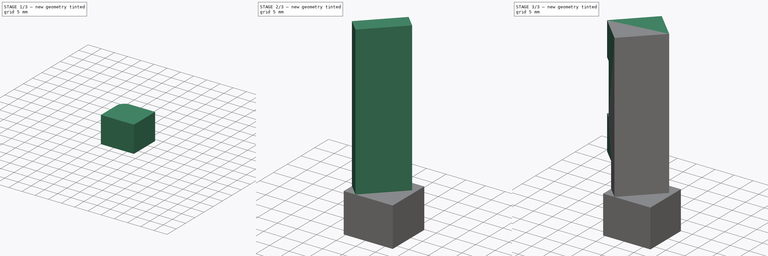
[diagram: build sequence overview — one tinted view per stage of 3, left to right]
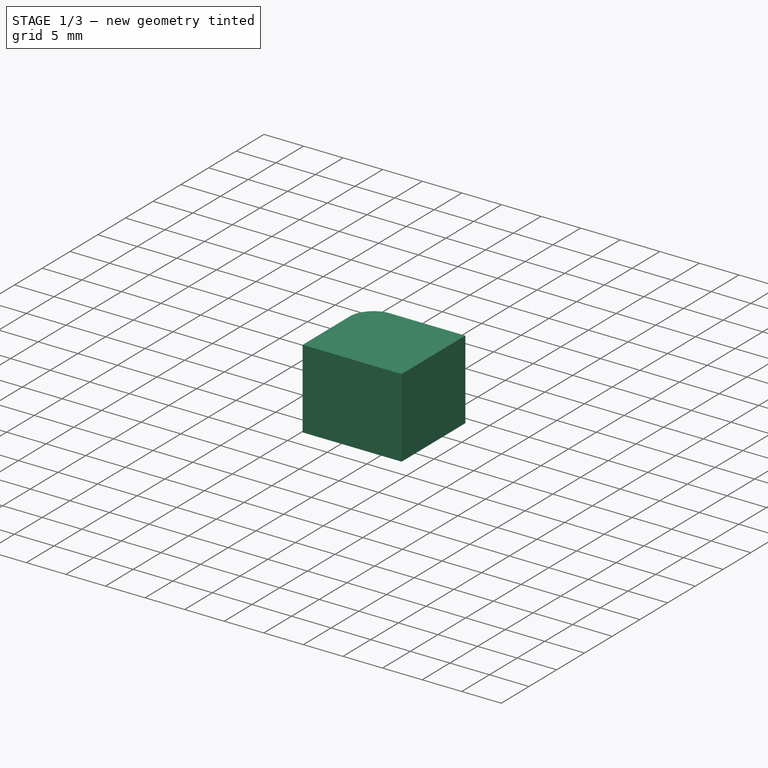
[diagram: stage 1 of 3 — iso view after this stage's code; geometry added in this stage tinted green]
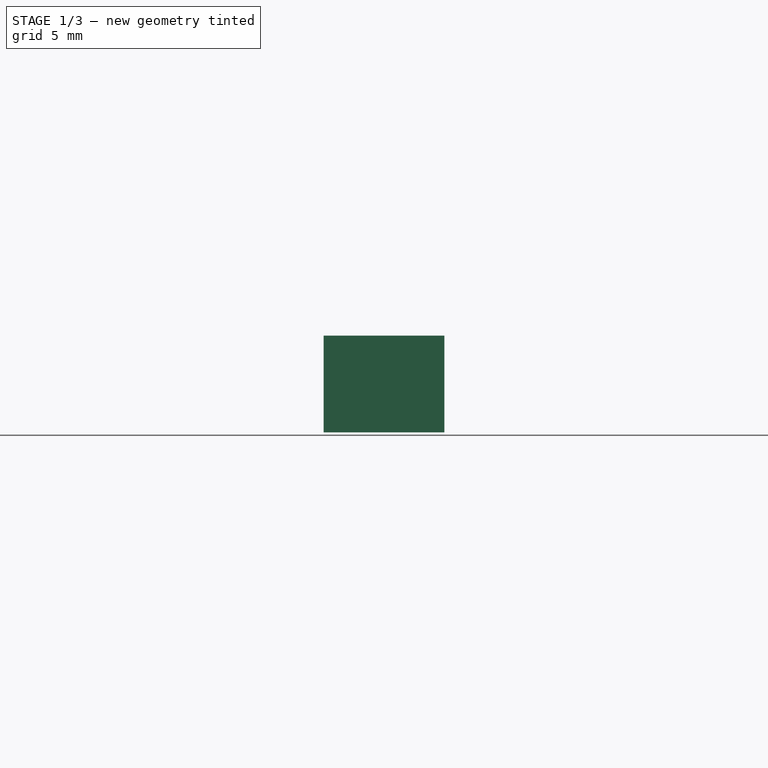
[diagram: stage 1 of 3 — front view after this stage's code; geometry added in this stage tinted green]
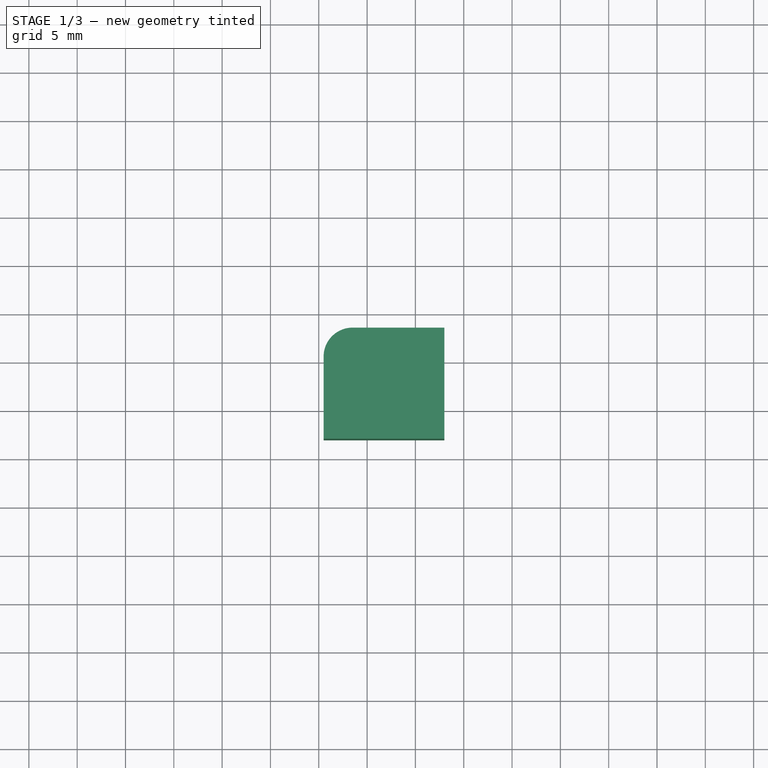
[diagram: stage 1 of 3 — top view after this stage's code; geometry added in this stage tinted green]
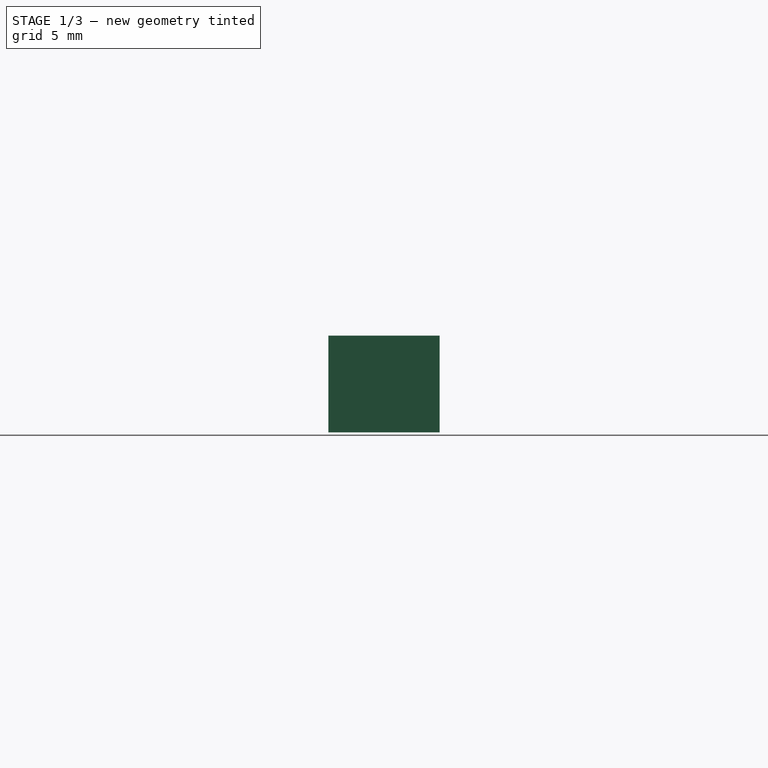
[diagram: stage 1 of 3 — right view after this stage's code; geometry added in this stage tinted green]
FCSTD DOCUMENT  (FreeCAD 0.20RUnknown)
Label: EngineMainBody
License: All rights reserved
LicenseURL: http://en.wikipedia.org/wiki/All_rights_reserved
objects: Sketcher::SketchObject×6, PartDesign::Pad×5, PartDesign::Body×1, PartDesign::Pocket×1
note: 19 computed .brp shape members not serialized (recipe doc carries the construction recipe); baked Part::Feature solids carry a one-line shape summary decoded from their .brp

FEATURE [PartDesign::Body] Body  label="EngineMainBody"
  Origin = -> Origin
FEATURE [Sketcher::SketchObject] Sketch013
  FullyConstrained = true
  MapMode = 5
  Support = -> [XY_Plane008]
  sketch-geometry (6):
    g0: LineSegment StartX=5.5 StartY=-5.5 StartZ=0 EndX=5.5 EndY=3.5 EndZ=0
    g1: LineSegment StartX=5.5 StartY=3.5 StartZ=0 EndX=-1.5 EndY=3.5 EndZ=0
    g2: LineSegment StartX=-4.5 StartY=0.5 StartZ=0 EndX=-4.5 EndY=-5.5 EndZ=0
    g3: LineSegment StartX=-4.5 StartY=-5.5 StartZ=0 EndX=5.5 EndY=-5.5 EndZ=0
    g4: GeomPoint X=0 Y=0 Z=0
    g5: ArcOfCircle CenterX=-1.5 CenterY=0.5 CenterZ=0 NormalX=0 NormalY=0 NormalZ=1 AngleXU=0 Radius=3 StartAngle=1.5708 EndAngle=3.14159
  constraints (15):
    c: Coincident(g0,g1)
    c: Coincident(g2,g3)
    c: Coincident(g3,g0)
    c: Horizontal(g1)
    c: Horizontal(g3)
    c: Vertical(g0)
    c: Vertical(g2)
    c: Coincident(g4,g-1)
    c: Tangent(g5,g2) = -1.5708
    c: Tangent(g5,g1) = -1.5708
    c: Radius(g5) = 3
    c: DistanceX(g3,g3) = 10
    c: DistanceY(g0,g0) = 9
    c: DistanceX(g0) = 5.5
    c: DistanceY(g0) = 3.5
FEATURE [PartDesign::Pad] Pad003
  Direction = (0,0,1)
  Length = 6
  Length2 = 10
  Profile = -> Sketch013
  ReferenceAxis = -> Sketch013 [N_Axis]
  Refine = true
  Type = 0
FEATURE [Sketcher::SketchObject] Sketch040
  ExternalGeometry = -> [Pad003]
  FullyConstrained = true
  MapMode = 5
  Placement = pos=(0,0,6) rot=(0,0,1;0rad)
  Support = -> [Pad003]
  sketch-geometry (6):
    g0: LineSegment StartX=5.5 StartY=3.5 StartZ=0 EndX=8 EndY=3.5 EndZ=0
    g1: LineSegment StartX=8 StartY=3.5 StartZ=0 EndX=8 EndY=-8 EndZ=0
    g2: LineSegment StartX=8 StartY=-8 StartZ=0 EndX=-4.5 EndY=-8 EndZ=0
    g3: LineSegment StartX=-4.5 StartY=-8 StartZ=0 EndX=-4.5 EndY=-5.5 EndZ=0
    g4: LineSegment StartX=-4.5 StartY=-5.5 StartZ=0 EndX=5.5 EndY=-5.5 EndZ=0
    g5: LineSegment StartX=5.5 StartY=-5.5 StartZ=0 EndX=5.5 EndY=3.5 EndZ=0
  constraints (15):
    c: Horizontal(g0)
    c: Coincident(g0,g1)
    c: Vertical(g1)
    c: Coincident(g1,g2)
    c: Horizontal(g2)
    c: Coincident(g2,g3)
    c: Vertical(g3)
    c: Coincident(g3,g4)
    c: Coincident(g4,g5)
    c: Coincident(g5,g0)
    c: Equal(g3,g0)
    c: DistanceX(g0,g0) = 2.5
    c: Coincident(g3,g-3)
    c: Coincident(g0,g-4)
    c: Coincident(g4,g-4)
FEATURE [PartDesign::Pad] Pad022
  BaseFeature = -> Pad003
  Direction = (0,0,1)
  Length = 10
  Length2 = 10
  Profile = -> Sketch040
  ReferenceAxis = -> Sketch040 [N_Axis]
  Refine = true
  Reversed = true
  Type = 0
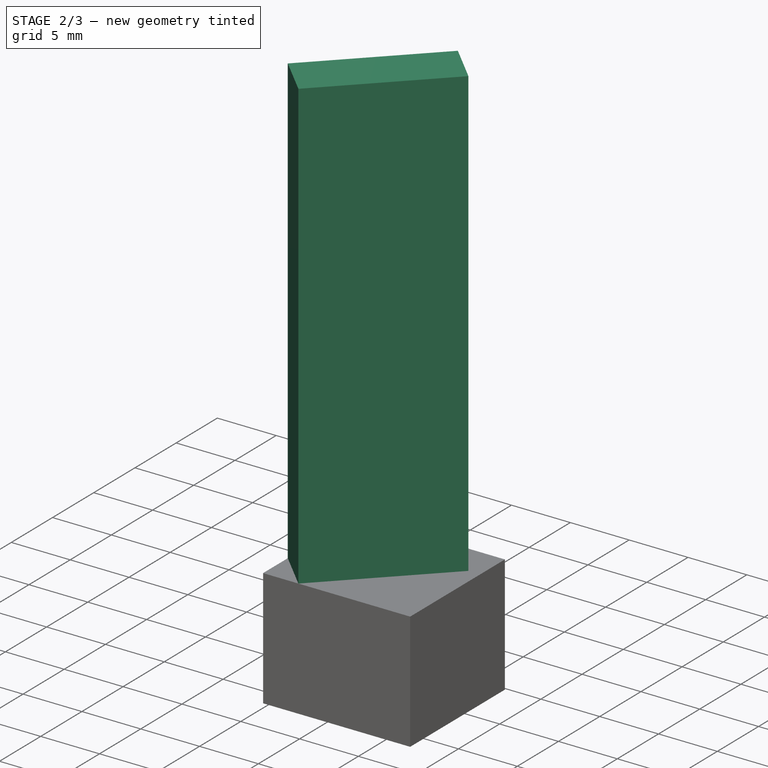
[diagram: stage 2 of 3 — iso view after this stage's code; geometry added in this stage tinted green]
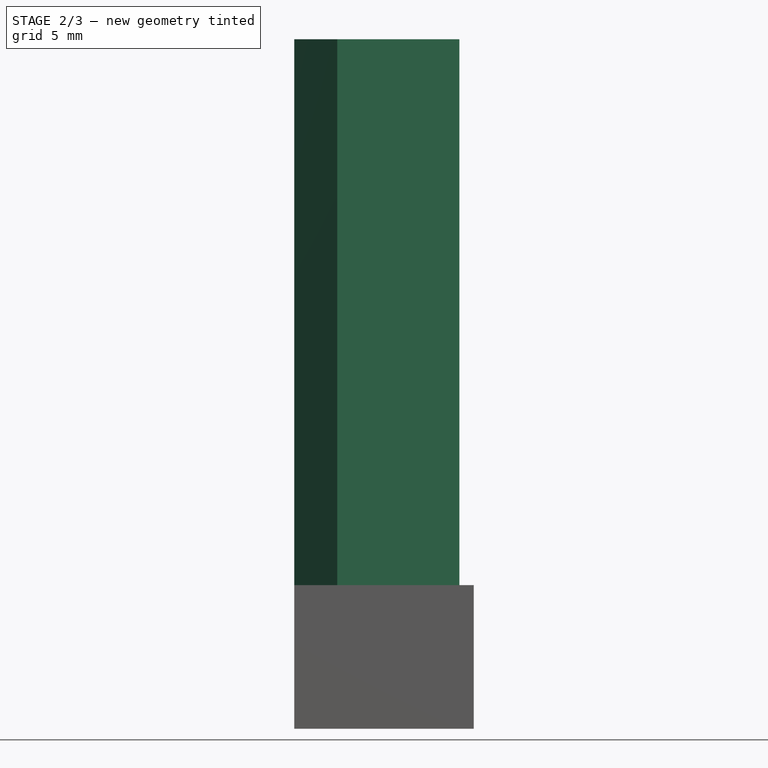
[diagram: stage 2 of 3 — front view after this stage's code; geometry added in this stage tinted green]
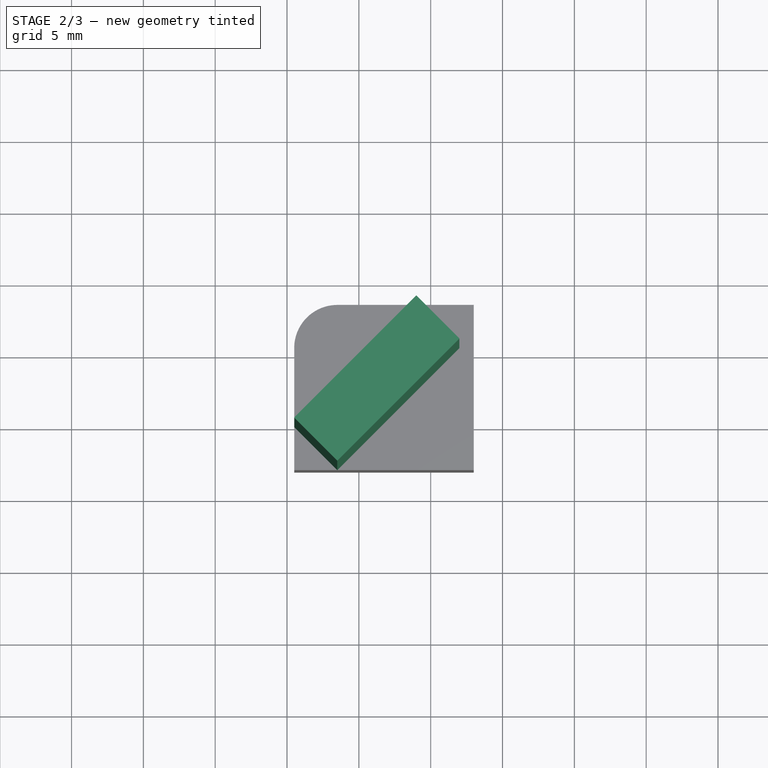
[diagram: stage 2 of 3 — top view after this stage's code; geometry added in this stage tinted green]
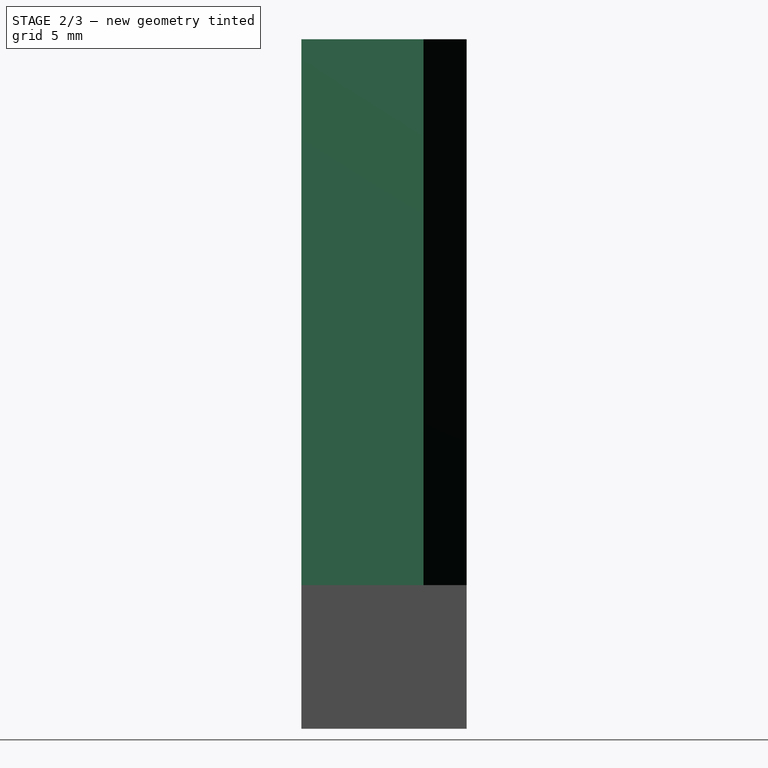
[diagram: stage 2 of 3 — right view after this stage's code; geometry added in this stage tinted green]
FEATURE [Sketcher::SketchObject] Sketch041
  FullyConstrained = true
  MapMode = 5
  Placement = pos=(0,0,0) rot=(1,0,0;3.14159rad)
  Support = -> [Pad022]
  sketch-geometry (1):
    g0: Circle CenterX=0 CenterY=0 CenterZ=0 NormalX=0 NormalY=0 NormalZ=1 AngleXU=0 Radius=2.75
  constraints (2):
    c: Coincident(g0,g-1)
    c: Diameter(g0) = 5.5
FEATURE [PartDesign::Pocket] Pocket007
  BaseFeature = -> Pad022
  Direction = (0,0,1)
  Length = 3
  Length2 = 5
  Profile = -> Sketch041
  ReferenceAxis = -> Sketch041 [N_Axis]
  Refine = true
  Type = 0
FEATURE [Sketcher::SketchObject] Sketch042
  ExternalGeometry = -> [Pocket007]
  FullyConstrained = true
  MapMode = 5
  Placement = pos=(0,0,6) rot=(0,0,1;0rad)
  Support = -> [Pocket007]
  sketch-geometry (4):
    g0: LineSegment StartX=-4.5 StartY=-5 StartZ=0 EndX=4 EndY=3.5 EndZ=0
    g1: LineSegment StartX=4 StartY=3.5 StartZ=0 EndX=7 EndY=0.5 EndZ=0
    g2: LineSegment StartX=7 StartY=0.5 StartZ=0 EndX=-1.5 EndY=-8 EndZ=0
    g3: LineSegment StartX=-1.5 StartY=-8 StartZ=0 EndX=-4.5 EndY=-5 EndZ=0
  constraints (12):
    c: Coincident(g0,g1)
    c: Coincident(g1,g2)
    c: Coincident(g2,g3)
    c: Coincident(g3,g0)
    c: Parallel(g2,g0)
    c: Parallel(g3,g1)
    c: Perpendicular(g3,g0)
    c: PointOnObject(g0,g-4)
    c: PointOnObject(g0,g-3)
    c: Angle(g-1,g2) = 0.785398
    c: DistanceY(g0,g-3) = 8.5
    c: PointOnObject(g2,g-5)
FEATURE [PartDesign::Pad] Pad023
  BaseFeature = -> Pocket007
  Direction = (0,0,1)
  Length = 38
  Length2 = 10
  Profile = -> Sketch042
  ReferenceAxis = -> Sketch042 [N_Axis]
  Refine = true
  Type = 0
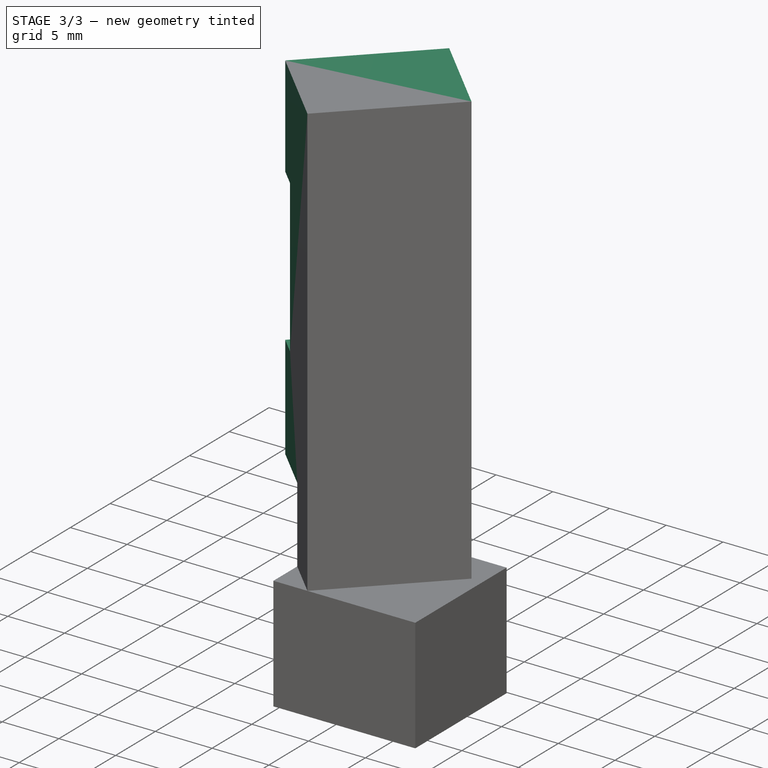
[diagram: stage 3 of 3 — iso view after this stage's code; geometry added in this stage tinted green]
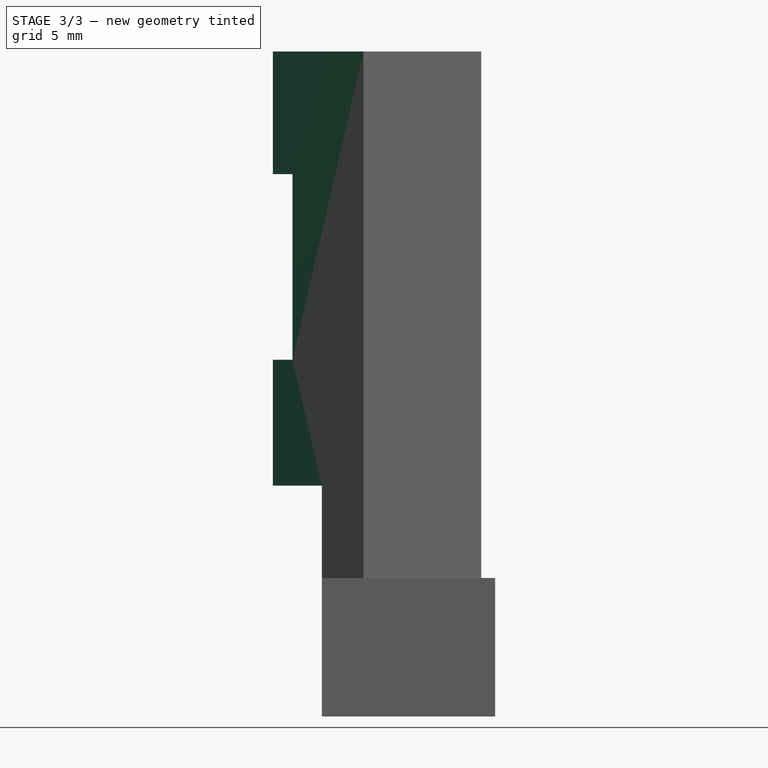
[diagram: stage 3 of 3 — front view after this stage's code; geometry added in this stage tinted green]
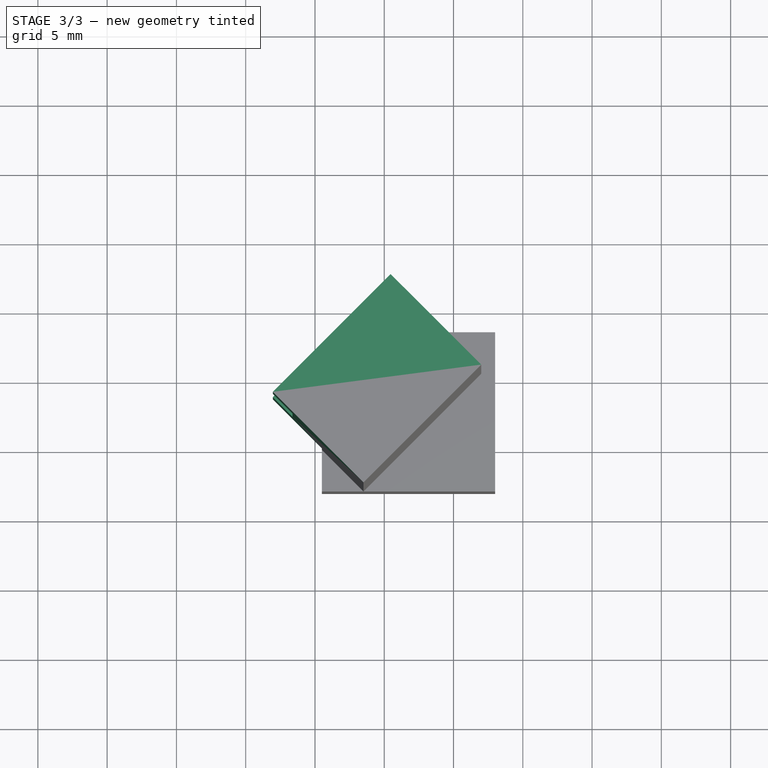
[diagram: stage 3 of 3 — top view after this stage's code; geometry added in this stage tinted green]
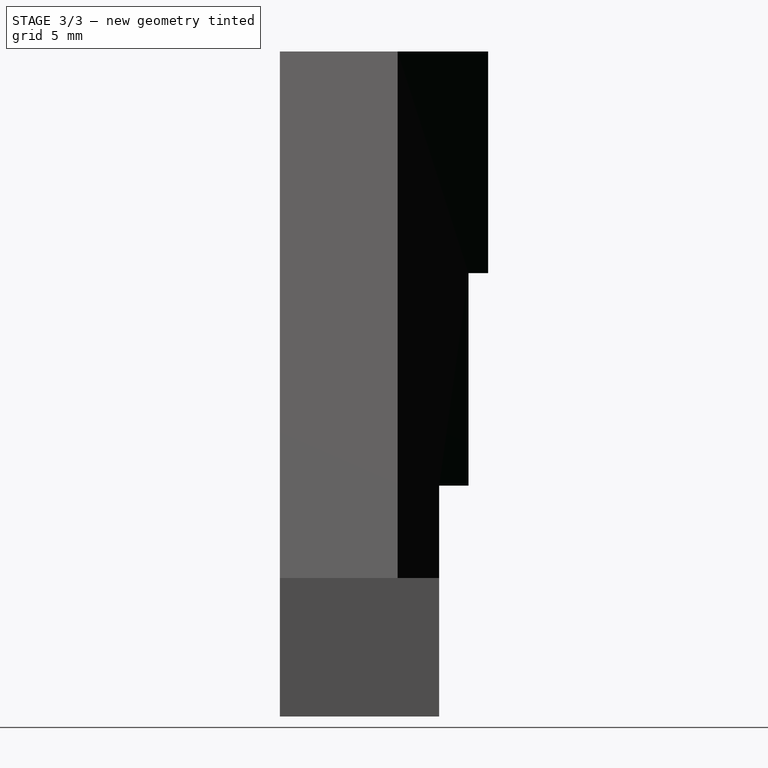
[diagram: stage 3 of 3 — right view after this stage's code; geometry added in this stage tinted green]
FEATURE [Sketcher::SketchObject] Sketch043
  ExternalGeometry = -> [Pad023]
  FullyConstrained = true
  MapMode = 5
  Placement = pos=(0.25,-0.25,0) rot=(-0.281085,0.678598,0.678598;3.68962rad)
  Support = -> [Pad023]
  sketch-geometry (4):
    g0: LineSegment StartX=-5.3033 StartY=44 StartZ=0 EndX=6.71751 EndY=44 EndZ=0
    g1: LineSegment StartX=-5.3033 StartY=12.6641 StartZ=0 EndX=-5.3033 EndY=44 EndZ=0
    g2: LineSegment StartX=-5.3033 StartY=12.6641 StartZ=0 EndX=6.71751 EndY=12.6641 EndZ=0
    g3: LineSegment StartX=6.71751 StartY=44 StartZ=0 EndX=6.71751 EndY=12.6641 EndZ=0
  constraints (10):
    c: Coincident(g1,g0)
    c: Vertical(g1)
    c: Horizontal(g2)
    c: Coincident(g3,g0)
    c: Vertical(g3)
    c: Coincident(g2,g1)
    c: Coincident(g0,g-3)
    c: Coincident(g0,g-4)
    c: DistanceY(g1,g1) = 31.3359
    c: Coincident(g3,g2)
FEATURE [PartDesign::Pad] Pad024
  BaseFeature = -> Pad023
  Direction = (-0.707107,0.707107,-2e-16)
  Length = 3
  Length2 = 10
  Profile = -> Sketch043
  ReferenceAxis = -> Sketch043 [N_Axis]
  Refine = true
  Type = 0
FEATURE [Sketcher::SketchObject] Sketch044
  ExternalGeometry = -> [Pad024]
  FullyConstrained = true
  MapMode = 5
  Placement = pos=(-1.87132,1.87132,-4e-16) rot=(-0.281085,0.678598,0.678598;3.68962rad)
  Support = -> [Pad024]
  sketch-geometry (14):
    g0: LineSegment StartX=-5.3033 StartY=44 StartZ=0 EndX=6.71751 EndY=44 EndZ=0
    g1: LineSegment StartX=-3.3033 StartY=42.15 StartZ=0 EndX=4.0967 EndY=42.15 EndZ=0
    g2: LineSegment StartX=4.0967 StartY=14.75 StartZ=0 EndX=-3.3033 EndY=14.75 EndZ=0
    g3: LineSegment StartX=4.0967 StartY=42.15 StartZ=0 EndX=4.0967 EndY=35.15 EndZ=0
    g4: LineSegment StartX=4.0967 StartY=14.75 StartZ=0 EndX=4.0967 EndY=21.75 EndZ=0
    g5: LineSegment StartX=6.71751 StartY=12.6641 StartZ=0 EndX=6.71751 EndY=21.75 EndZ=0
    g6: LineSegment StartX=4.0967 StartY=21.75 StartZ=0 EndX=6.71751 EndY=21.75 EndZ=0
    g7: LineSegment StartX=6.71751 StartY=44 StartZ=0 EndX=6.71751 EndY=35.15 EndZ=0
    g8: LineSegment StartX=4.0967 StartY=35.15 StartZ=0 EndX=6.71751 EndY=35.15 EndZ=0
    g9: LineSegment StartX=-5.3033 StartY=28 StartZ=0 EndX=-5.3033 EndY=44 EndZ=0
    g10: LineSegment StartX=-3.3033 StartY=28 StartZ=0 EndX=-3.3033 EndY=42.15 EndZ=0
    g11: LineSegment StartX=-3.3033 StartY=12.6641 StartZ=0 EndX=6.71751 EndY=12.6641 EndZ=0
    g12: LineSegment StartX=-3.3033 StartY=14.75 StartZ=0 EndX=-3.3033 EndY=12.6641 EndZ=0
    g13: LineSegment StartX=-5.3033 StartY=28 StartZ=0 EndX=-3.3033 EndY=28 EndZ=0
  constraints (39):
    c: Coincident(g9,g0)
    c: Coincident(g10,g1)
    c: Horizontal(g1)
    c: Horizontal(g2)
    c: DistanceY(g2,g10) = 27.4
    c: Coincident(g3,g1)
    c: Vertical(g3)
    c: Coincident(g4,g2)
    c: Vertical(g4)
    c: Coincident(g5,g11)
    c: Coincident(g6,g4)
    c: Coincident(g6,g5)
    c: Horizontal(g6)
    c: Coincident(g7,g0)
    c: Vertical(g7)
    c: Coincident(g8,g3)
    c: Coincident(g8,g7)
    c: Horizontal(g8)
    c: Vertical(g3,g4)
    c: Equal(g4,g3)
    c: DistanceX(g0,g1) = 2
    c: DistanceY(g1,g0) = 1.85
    c: DistanceX(g1,g1) = 7.4
    c: DistanceY(g4,g3) = 13.4
    c: Coincident(g0,g-4)
    c: Vertical(g5)
    c: Vertical(g9)
    c: Vertical(g10)
    c: Horizontal(g11)
    c: Vertical(g10,g2)
    c: Coincident(g12,g2)
    c: Coincident(g12,g11)
    c: Vertical(g12)
    c: Coincident(g13,g9)
    c: Coincident(g13,g10)
    c: Horizontal(g13)
    c: DistanceY(g9) = 28
    c: Coincident(g0,g-4)
    c: Coincident(g5,g-3)
FEATURE [PartDesign::Pad] Pad025
  BaseFeature = -> Pad024
  Direction = (-0.707107,0.707107,1e-16)
  Length = 2
  Length2 = 10
  Profile = -> Sketch044
  ReferenceAxis = -> Sketch044 [N_Axis]
  Refine = true
  Type = 0
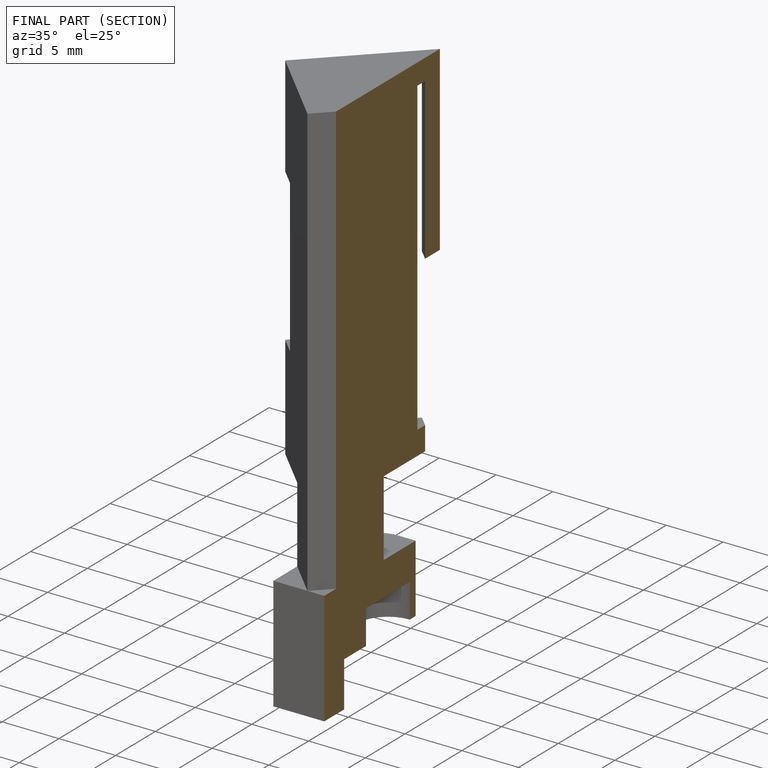
[diagram: finished part — half-section view (interior)]
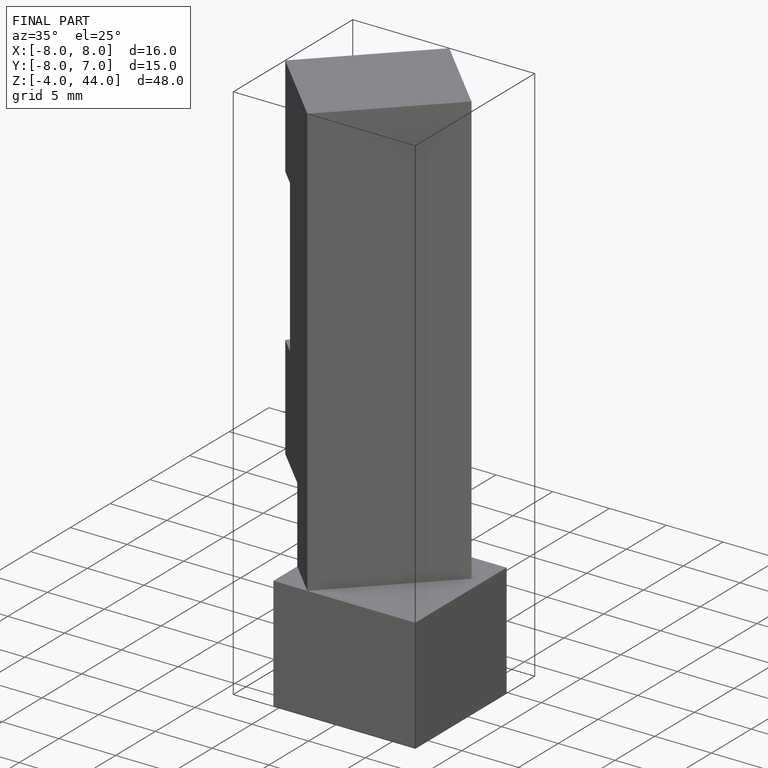
[diagram: finished part — iso view with bounding-box wireframe]
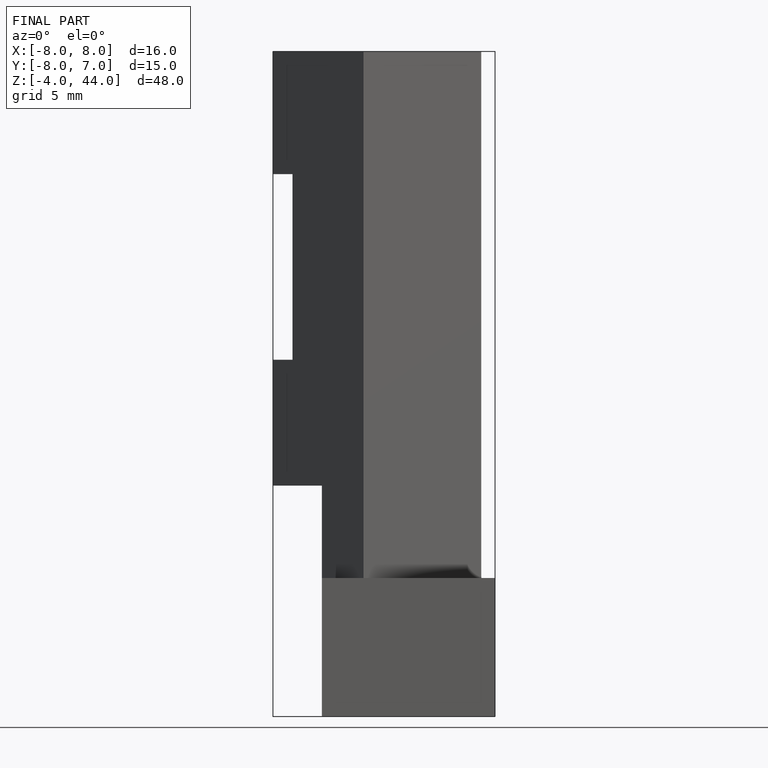
[diagram: finished part — front view with bounding-box wireframe]
